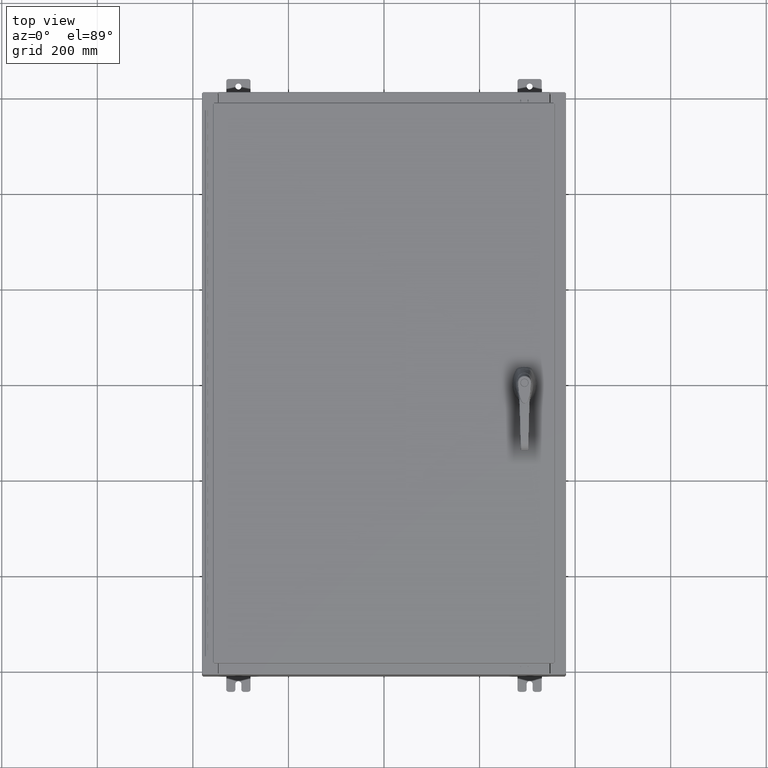
[diagram: clean part render]
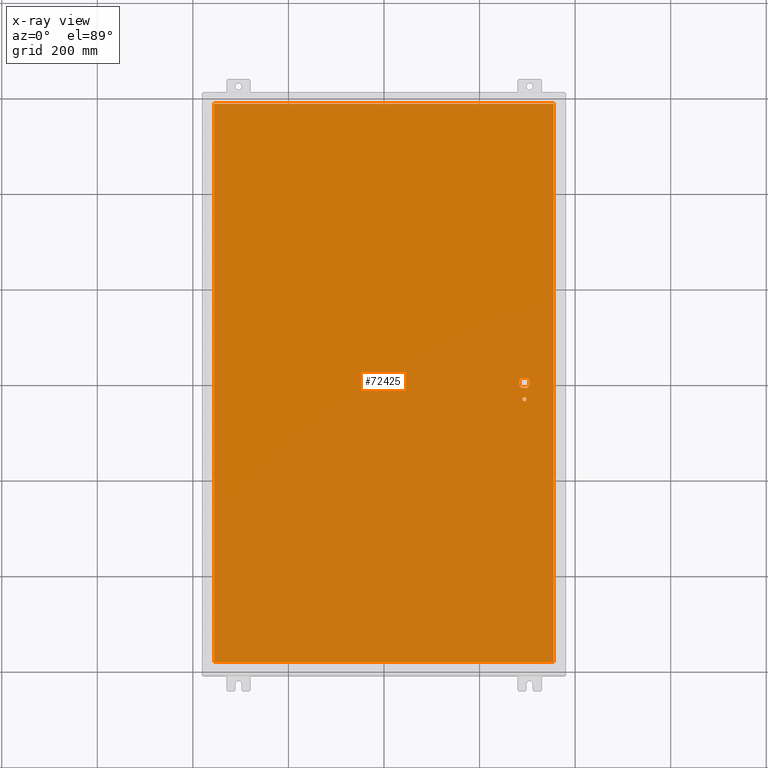
[diagram: x-ray — body ghosted, one internal face saturated and labeled with its STEP entity id]
A machine part, top view, then the same camera in x-ray: the body is ghosted and one INTERNAL B-rep face — a face not visible from any outside direction — is saturated and labeled: STEP entity #72425.
In plain terms, the highlighted planar face has unit normal (0, 0, -1).
Its self-contained STEP definition (entity closure, byte-faithful):
#1037 = VERTEX_POINT ( 'NONE', #65640 ) ;
#2019 = EDGE_LOOP ( 'NONE', ( #51748, #126876 ) ) ;
#3389 = ORIENTED_EDGE ( 'NONE', *, *, #73863, .T. ) ;
#5861 = CARTESIAN_POINT ( 'NONE',  ( 0.0000000000000000000, -0.4029999999999252000, -0.07470000000000003000 ) ) ;
#6384 = DIRECTION ( 'NONE',  ( 5.457491617345625000E-015, -1.000000000000000000, 0.0000000000000000000 ) ) ;
#6596 = ORIENTED_EDGE ( 'NONE', *, *, #74120, .T. ) ;
#8397 = LINE ( 'NONE', #93408, #108056 ) ;
#9599 = DIRECTION ( 'NONE',  ( -0.0000000000000000000, -0.0000000000000000000, 1.000000000000000000 ) ) ;
#10346 = CARTESIAN_POINT ( 'NONE',  ( -13.99029999999999800, 23.00630000000000300, -0.07470000000000000300 ) ) ;
#10969 = VERTEX_POINT ( 'NONE', #10346 ) ;
#13092 = AXIS2_PLACEMENT_3D ( 'NONE', #71030, #9599, #81342 ) ;
#13141 = LINE ( 'NONE', #5861, #64501 ) ;
#13308 = CIRCLE ( 'NONE', #15040, 0.1715000000000011500 ) ;
#14697 = CARTESIAN_POINT ( 'NONE',  ( 0.0000000000000000000, 0.0000000000000000000, -0.07470000000000000300 ) ) ;
#14998 = CARTESIAN_POINT ( 'NONE',  ( 11.17500000000007000, -0.2002273707563079800, -0.07470000000000003000 ) ) ;
#15040 = AXIS2_PLACEMENT_3D ( 'NONE', #55051, #127086, #65355 ) ;
#16509 = ORIENTED_EDGE ( 'NONE', *, *, #59628, .F. ) ;
#16931 = VERTEX_POINT ( 'NONE', #98952 ) ;
#19597 = ORIENTED_EDGE ( 'NONE', *, *, #38526, .T. ) ;
#21014 = VERTEX_POINT ( 'NONE', #108354 ) ;
#21055 = EDGE_CURVE ( 'NONE', #76873, #45331, #100567, .T. ) ;
#21057 = CARTESIAN_POINT ( 'NONE',  ( 11.37777262924368800, 0.4029999999999252000, -0.07470000000000003000 ) ) ;
#21630 = DIRECTION ( 'NONE',  ( -1.000000000000000000, 0.0000000000000000000, 0.0000000000000000000 ) ) ;
#22298 = VECTOR ( 'NONE', #75746, 39.37007874015748100 ) ;
#24185 = CARTESIAN_POINT ( 'NONE',  ( 11.17500000000007000, 0.0000000000000000000, -0.07470000000000003000 ) ) ;
#24513 = DIRECTION ( 'NONE',  ( 0.0000000000000000000, 1.000000000000000000, 0.0000000000000000000 ) ) ;
#24726 = CIRCLE ( 'NONE', #76802, 0.4499999999999168000 ) ;
#25526 = LINE ( 'NONE', #24185, #22298 ) ;
#28319 = VERTEX_POINT ( 'NONE', #77185 ) ;
#32851 = CARTESIAN_POINT ( 'NONE',  ( 11.57799999999999800, 0.0000000000000000000, -0.07470000000000003000 ) ) ;
#33270 = ORIENTED_EDGE ( 'NONE', *, *, #73881, .T. ) ;
#35381 = DIRECTION ( 'NONE',  ( -1.000000000000000000, 0.0000000000000000000, -0.0000000000000000000 ) ) ;
#38526 = EDGE_CURVE ( 'NONE', #76873, #84642, #82044, .T. ) ;
#38704 = EDGE_LOOP ( 'NONE', ( #66350, #78540, #19597, #3389, #96099, #65411, #33270, #6596 ) ) ;
#39390 = DIRECTION ( 'NONE',  ( -0.0000000000000000000, -0.0000000000000000000, 1.000000000000000000 ) ) ;
#40549 = EDGE_LOOP ( 'NONE', ( #126570, #115851, #16509, #130223 ) ) ;
#41722 = CARTESIAN_POINT ( 'NONE',  ( 11.98099999999992500, 0.2002273707563075900, -0.07470000000000003000 ) ) ;
#42733 = VECTOR ( 'NONE', #6384, 39.37007874015748100 ) ;
#43046 = DIRECTION ( 'NONE',  ( -1.000000000000000000, -0.0000000000000000000, -0.0000000000000000000 ) ) ;
#43129 = DIRECTION ( 'NONE',  ( -1.000000000000000000, -1.776356839400246700E-015, 0.0000000000000000000 ) ) ;
#45223 = DIRECTION ( 'NONE',  ( 0.0000000000000000000, 0.0000000000000000000, -1.000000000000000000 ) ) ;
#45331 = VERTEX_POINT ( 'NONE', #69066 ) ;
#46513 = CARTESIAN_POINT ( 'NONE',  ( 11.57799999999999800, 0.0000000000000000000, -0.07470000000000003000 ) ) ;
#46590 = VERTEX_POINT ( 'NONE', #21057 ) ;
#48737 = CARTESIAN_POINT ( 'NONE',  ( 11.57799999999999800, -1.338000000000000100, -0.07470000000000003000 ) ) ;
#51748 = ORIENTED_EDGE ( 'NONE', *, *, #59764, .T. ) ;
#52218 = VERTEX_POINT ( 'NONE', #110705 ) ;
#52755 = EDGE_CURVE ( 'NONE', #1037, #45331, #24726, .T. ) ;
#54497 = LINE ( 'NONE', #71800, #81791 ) ;
#55051 = CARTESIAN_POINT ( 'NONE',  ( 11.57799999999999800, -1.338000000000000100, -0.07470000000000003000 ) ) ;
#56798 = DIRECTION ( 'NONE',  ( -1.000000000000000000, -5.329070518200740300E-015, 0.0000000000000000000 ) ) ;
#57045 = AXIS2_PLACEMENT_3D ( 'NONE', #32851, #104682, #43129 ) ;
#57631 = CARTESIAN_POINT ( 'NONE',  ( 13.99029999999999800, -23.00630000000000000, -0.07470000000000000300 ) ) ;
#59030 = DIRECTION ( 'NONE',  ( -1.000000000000000000, 0.0000000000000000000, 0.0000000000000000000 ) ) ;
#59628 = EDGE_CURVE ( 'NONE', #10969, #52218, #88938, .T. ) ;
#59764 = EDGE_CURVE ( 'NONE', #28319, #65990, #109891, .T. ) ;
#60351 = EDGE_CURVE ( 'NONE', #65990, #28319, #13308, .T. ) ;
#61621 = VECTOR ( 'NONE', #78313, 39.37007874015748100 ) ;
#63703 = LINE ( 'NONE', #104607, #118517 ) ;
#64501 = VECTOR ( 'NONE', #88390, 39.37007874015748100 ) ;
#64685 = VERTEX_POINT ( 'NONE', #57631 ) ;
#65355 = DIRECTION ( 'NONE',  ( -1.000000000000000000, 0.0000000000000000000, 0.0000000000000000000 ) ) ;
#65411 = ORIENTED_EDGE ( 'NONE', *, *, #108900, .T. ) ;
#65640 = CARTESIAN_POINT ( 'NONE',  ( 11.77822737075630700, -0.4029999999999252000, -0.07470000000000003000 ) ) ;
#65990 = VERTEX_POINT ( 'NONE', #84798 ) ;
#66350 = ORIENTED_EDGE ( 'NONE', *, *, #52755, .T. ) ;
#69066 = CARTESIAN_POINT ( 'NONE',  ( 11.98099999999992500, -0.2002273707563067300, -0.07470000000000003000 ) ) ;
#69165 = VECTOR ( 'NONE', #24513, 39.37007874015748100 ) ;
#70688 = CARTESIAN_POINT ( 'NONE',  ( 11.37777262924368800, -0.4029999999999250300, -0.07470000000000003000 ) ) ;
#71030 = CARTESIAN_POINT ( 'NONE',  ( 11.57799999999999800, 0.0000000000000000000, -0.07470000000000003000 ) ) ;
#71208 = FACE_BOUND ( 'NONE', #2019, .T. ) ;
#71800 = CARTESIAN_POINT ( 'NONE',  ( -13.99029999999999800, -23.00630000000000300, -0.07469999999999804600 ) ) ;
#72425 = ADVANCED_FACE ( 'NONE', ( #71208, #98594, #132498 ), #96853, .T. ) ;
#73036 = VERTEX_POINT ( 'NONE', #14998 ) ;
#73863 = EDGE_CURVE ( 'NONE', #84642, #46590, #8397, .T. ) ;
#73881 = EDGE_CURVE ( 'NONE', #73036, #90402, #80590, .T. ) ;
#74120 = EDGE_CURVE ( 'NONE', #90402, #1037, #13141, .T. ) ;
#75746 = DIRECTION ( 'NONE',  ( 0.0000000000000000000, -1.000000000000000000, 0.0000000000000000000 ) ) ;
#76802 = AXIS2_PLACEMENT_3D ( 'NONE', #100898, #39390, #111304 ) ;
#76873 = VERTEX_POINT ( 'NONE', #41722 ) ;
#77185 = CARTESIAN_POINT ( 'NONE',  ( 11.74949999999999900, -1.338000000000000100, -0.07470000000000003000 ) ) ;
#78313 = DIRECTION ( 'NONE',  ( 0.0000000000000000000, -1.000000000000000000, 0.0000000000000000000 ) ) ;
#78540 = ORIENTED_EDGE ( 'NONE', *, *, #21055, .F. ) ;
#80590 = CIRCLE ( 'NONE', #57045, 0.4499999999999168000 ) ;
#81002 = AXIS2_PLACEMENT_3D ( 'NONE', #14697, #45223, #35381 ) ;
#81342 = DIRECTION ( 'NONE',  ( -1.000000000000000000, -5.329070518200740300E-015, 0.0000000000000000000 ) ) ;
#81791 = VECTOR ( 'NONE', #92523, 39.37007874015748100 ) ;
#82044 = CIRCLE ( 'NONE', #13092, 0.4499999999999168000 ) ;
#84642 = VERTEX_POINT ( 'NONE', #132778 ) ;
#84798 = CARTESIAN_POINT ( 'NONE',  ( 11.40649999999999600, -1.338000000000000100, -0.07470000000000003000 ) ) ;
#87344 = AXIS2_PLACEMENT_3D ( 'NONE', #46513, #118466, #56798 ) ;
#88390 = DIRECTION ( 'NONE',  ( 1.000000000000000000, 0.0000000000000000000, 0.0000000000000000000 ) ) ;
#88482 = CARTESIAN_POINT ( 'NONE',  ( 11.98099999999992500, 6.538620706741752400E-014, -0.07470000000000003000 ) ) ;
#88938 = LINE ( 'NONE', #119372, #61621 ) ;
#90402 = VERTEX_POINT ( 'NONE', #70688 ) ;
#92523 = DIRECTION ( 'NONE',  ( 1.000000000000000000, -0.0000000000000000000, -0.0000000000000000000 ) ) ;
#93408 = CARTESIAN_POINT ( 'NONE',  ( 0.0000000000000000000, 0.4029999999999252000, -0.07470000000000003000 ) ) ;
#96099 = ORIENTED_EDGE ( 'NONE', *, *, #127472, .T. ) ;
#96528 = LINE ( 'NONE', #126981, #69165 ) ;
#96853 = PLANE ( 'NONE',  #81002 ) ;
#98594 = FACE_OUTER_BOUND ( 'NONE', #40549, .T. ) ;
#98952 = CARTESIAN_POINT ( 'NONE',  ( 13.99029999999999800, 23.00630000000000300, -0.07470000000000000300 ) ) ;
#100567 = LINE ( 'NONE', #88482, #42733 ) ;
#100898 = CARTESIAN_POINT ( 'NONE',  ( 11.57799999999999800, 0.0000000000000000000, -0.07470000000000003000 ) ) ;
#104607 = CARTESIAN_POINT ( 'NONE',  ( 13.99029999999999800, 23.00630000000001000, -0.07469999999999804600 ) ) ;
#104682 = DIRECTION ( 'NONE',  ( -0.0000000000000000000, -0.0000000000000000000, 1.000000000000000000 ) ) ;
#108056 = VECTOR ( 'NONE', #21630, 39.37007874015748100 ) ;
#108354 = CARTESIAN_POINT ( 'NONE',  ( 11.17500000000007000, 0.2002273707563075900, -0.07470000000000003000 ) ) ;
#108900 = EDGE_CURVE ( 'NONE', #21014, #73036, #25526, .T. ) ;
#109891 = CIRCLE ( 'NONE', #121687, 0.1715000000000011500 ) ;
#110452 = EDGE_CURVE ( 'NONE', #16931, #10969, #63703, .T. ) ;
#110705 = CARTESIAN_POINT ( 'NONE',  ( -13.99029999999999800, -23.00630000000000000, -0.07470000000000000300 ) ) ;
#111304 = DIRECTION ( 'NONE',  ( -1.000000000000000000, -1.776356839400246700E-015, 0.0000000000000000000 ) ) ;
#115851 = ORIENTED_EDGE ( 'NONE', *, *, #125061, .F. ) ;
#117554 = EDGE_CURVE ( 'NONE', #64685, #16931, #96528, .T. ) ;
#118466 = DIRECTION ( 'NONE',  ( -0.0000000000000000000, -0.0000000000000000000, 1.000000000000000000 ) ) ;
#118517 = VECTOR ( 'NONE', #43046, 39.37007874015748100 ) ;
#118574 = CIRCLE ( 'NONE', #87344, 0.4499999999999168000 ) ;
#119372 = CARTESIAN_POINT ( 'NONE',  ( -13.99029999999999800, 23.00630000000000300, -0.07470000000000019700 ) ) ;
#120698 = DIRECTION ( 'NONE',  ( -0.0000000000000000000, -0.0000000000000000000, 1.000000000000000000 ) ) ;
#121687 = AXIS2_PLACEMENT_3D ( 'NONE', #48737, #120698, #59030 ) ;
#125061 = EDGE_CURVE ( 'NONE', #52218, #64685, #54497, .T. ) ;
#126570 = ORIENTED_EDGE ( 'NONE', *, *, #117554, .F. ) ;
#126876 = ORIENTED_EDGE ( 'NONE', *, *, #60351, .T. ) ;
#126981 = CARTESIAN_POINT ( 'NONE',  ( 13.99029999999999800, -23.00630000000000300, -0.07470000000000019700 ) ) ;
#127086 = DIRECTION ( 'NONE',  ( -0.0000000000000000000, -0.0000000000000000000, 1.000000000000000000 ) ) ;
#127472 = EDGE_CURVE ( 'NONE', #46590, #21014, #118574, .T. ) ;
#130223 = ORIENTED_EDGE ( 'NONE', *, *, #110452, .F. ) ;
#132498 = FACE_BOUND ( 'NONE', #38704, .T. ) ;
#132778 = CARTESIAN_POINT ( 'NONE',  ( 11.77822737075630700, 0.4029999999999250300, -0.07470000000000003000 ) ) ;